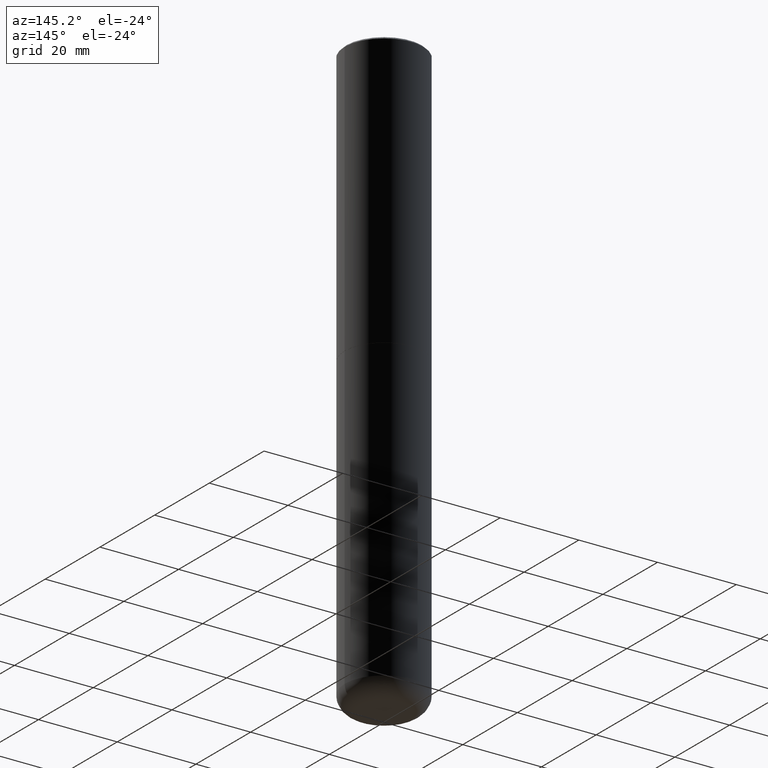
[diagram: clean part render]
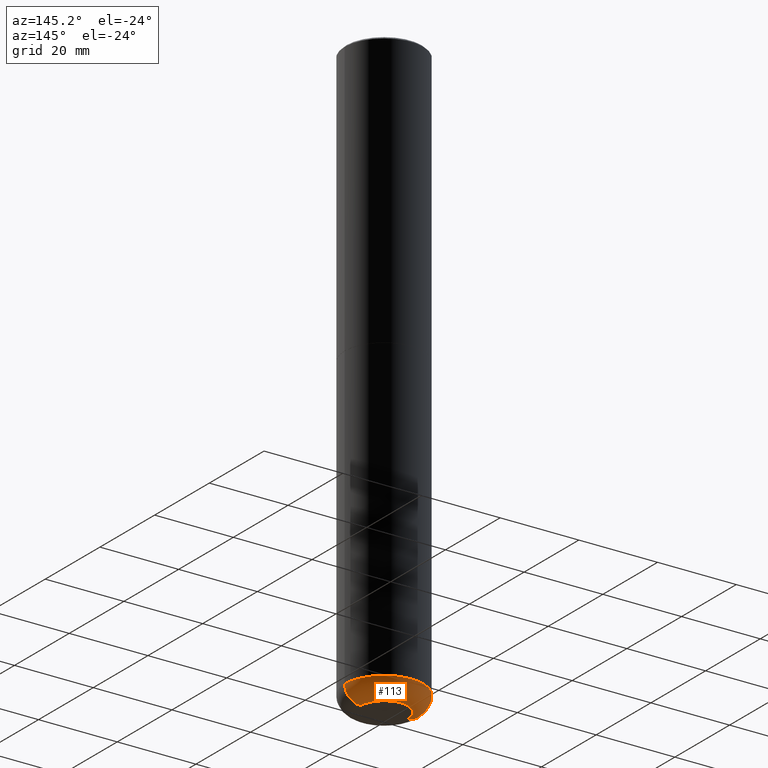
[diagram: same view with one face highlighted and labeled with its STEP entity id]
A machine part, auxiliary view. The second image highlights one B-rep face of the part: STEP entity #113.
In plain terms, the highlighted toroidal blend (fillet) surface has major radius 5.9995 mm and minor (blend) radius 4.0005 mm.
Its self-contained STEP definition (entity closure, byte-faithful):
#15 = DIRECTION ( 'NONE',  ( 1.000000000000000000, -6.982962677686267499E-15, 0.000000000000000000 ) ) ;
#29 = CARTESIAN_POINT ( 'NONE',  ( -0.2362000000000000210, -1.839073279380504538E-14, -5.748000000000000220 ) ) ;
#32 = ORIENTED_EDGE ( 'NONE', *, *, #216, .F. ) ;
#39 = AXIS2_PLACEMENT_3D ( 'NONE', #341, #373, #310 ) ;
#40 = ORIENTED_EDGE ( 'NONE', *, *, #312, .F. ) ;
#50 = ORIENTED_EDGE ( 'NONE', *, *, #118, .T. ) ;
#61 = DIRECTION ( 'NONE',  ( -1.000000000000000000, 7.105427357601006592E-15, 0.000000000000000000 ) ) ;
#62 = EDGE_CURVE ( 'NONE', #347, #342, #413, .T. ) ;
#85 = TOROIDAL_SURFACE ( 'NONE', #351, 0.2362000000000000210, 0.1575000000000003619 ) ;
#92 = AXIS2_PLACEMENT_3D ( 'NONE', #267, #107, #400 ) ;
#105 = CARTESIAN_POINT ( 'NONE',  ( 1.405655469795216423E-28, -2.006903473567040335E-14, -5.748000000000000220 ) ) ;
#107 = DIRECTION ( 'NONE',  ( -2.445468806185136597E-29, 3.491481338843145583E-15, 1.000000000000000000 ) ) ;
#113 = ADVANCED_FACE ( 'NONE', ( #128 ), #85, .T. ) ;
#118 = EDGE_CURVE ( 'NONE', #120, #347, #196, .T. ) ;
#120 = VERTEX_POINT ( 'NONE', #327 ) ;
#128 = FACE_OUTER_BOUND ( 'NONE', #314, .T. ) ;
#194 = CARTESIAN_POINT ( 'NONE',  ( -0.2362000000000000766, -1.810613454482786325E-14, -5.905500000000000860 ) ) ;
#196 = CIRCLE ( 'NONE', #92, 0.2362000000000000766 ) ;
#216 = EDGE_CURVE ( 'NONE', #217, #342, #370, .T. ) ;
#217 = VERTEX_POINT ( 'NONE', #244 ) ;
#228 = CARTESIAN_POINT ( 'NONE',  ( -0.3937000000000002164, -1.727162798498288620E-14, -5.748000000000000220 ) ) ;
#244 = CARTESIAN_POINT ( 'NONE',  ( 0.3937000000000002164, -2.281822714187548973E-14, -5.748000000000000220 ) ) ;
#267 = CARTESIAN_POINT ( 'NONE',  ( 1.444171603492632494E-28, -2.061894304653819828E-14, -5.905500000000000860 ) ) ;
#269 = AXIS2_PLACEMENT_3D ( 'NONE', #29, #320, #61 ) ;
#300 = DIRECTION ( 'NONE',  ( 1.000000000000000000, -6.982962677686272233E-15, 4.883557194083114022E-29 ) ) ;
#310 = DIRECTION ( 'NONE',  ( 1.000000000000000000, -6.982962677686271444E-15, 0.000000000000000000 ) ) ;
#311 = CIRCLE ( 'NONE', #39, 0.1575000000000003342 ) ;
#312 = EDGE_CURVE ( 'NONE', #120, #217, #311, .T. ) ;
#314 = EDGE_LOOP ( 'NONE', ( #50, #418, #32, #40 ) ) ;
#320 = DIRECTION ( 'NONE',  ( 7.105427357601001859E-15, 1.000000000000000000, -3.491481338843145583E-15 ) ) ;
#327 = CARTESIAN_POINT ( 'NONE',  ( 0.2362000000000000766, -2.226831883100769480E-14, -5.905500000000000860 ) ) ;
#330 = DIRECTION ( 'NONE',  ( -2.445468806185136597E-29, 3.491481338843145583E-15, 1.000000000000000000 ) ) ;
#331 = AXIS2_PLACEMENT_3D ( 'NONE', #366, #364, #15 ) ;
#341 = CARTESIAN_POINT ( 'NONE',  ( 0.2362000000000000210, -2.171841052013989988E-14, -5.748000000000000220 ) ) ;
#342 = VERTEX_POINT ( 'NONE', #228 ) ;
#347 = VERTEX_POINT ( 'NONE', #194 ) ;
#351 = AXIS2_PLACEMENT_3D ( 'NONE', #105, #330, #300 ) ;
#364 = DIRECTION ( 'NONE',  ( -2.445468806185136597E-29, 3.491481338843145583E-15, 1.000000000000000000 ) ) ;
#366 = CARTESIAN_POINT ( 'NONE',  ( 1.405655469795216423E-28, -2.006903473567040335E-14, -5.748000000000000220 ) ) ;
#370 = CIRCLE ( 'NONE', #331, 0.3937000000000000499 ) ;
#373 = DIRECTION ( 'NONE',  ( -6.982962677686266711E-15, -1.000000000000000000, 3.491481338843145583E-15 ) ) ;
#400 = DIRECTION ( 'NONE',  ( 1.000000000000000000, -6.982962677686270655E-15, 0.000000000000000000 ) ) ;
#413 = CIRCLE ( 'NONE', #269, 0.1575000000000003342 ) ;
#418 = ORIENTED_EDGE ( 'NONE', *, *, #62, .T. ) ;